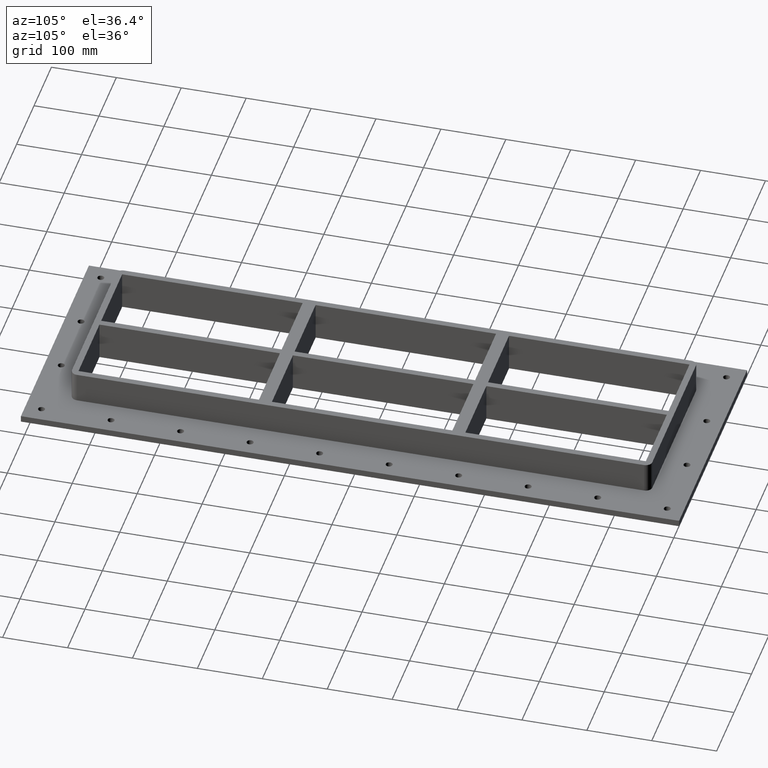
[diagram: clean part render]
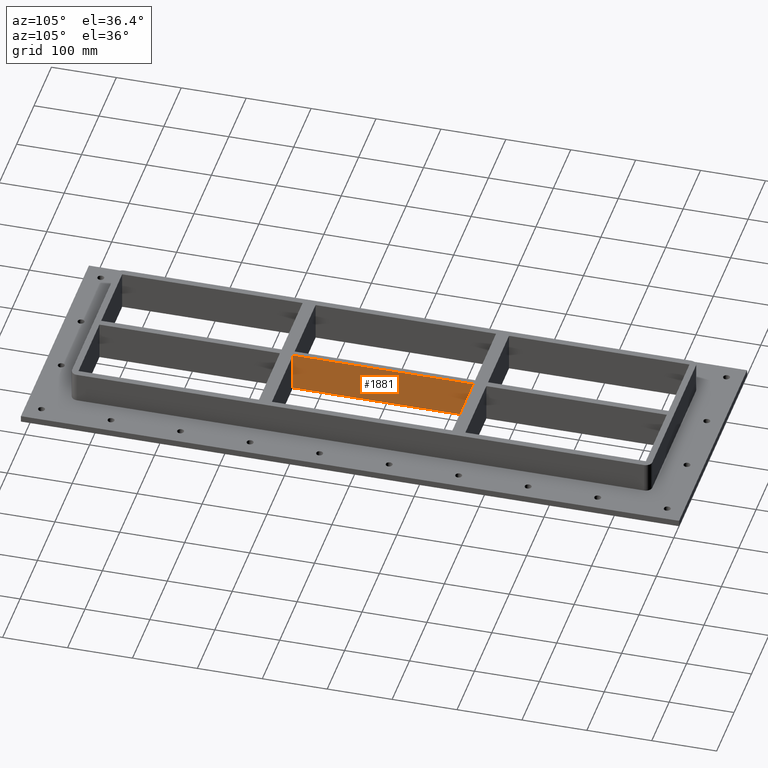
[diagram: same view with one face highlighted and labeled with its STEP entity id]
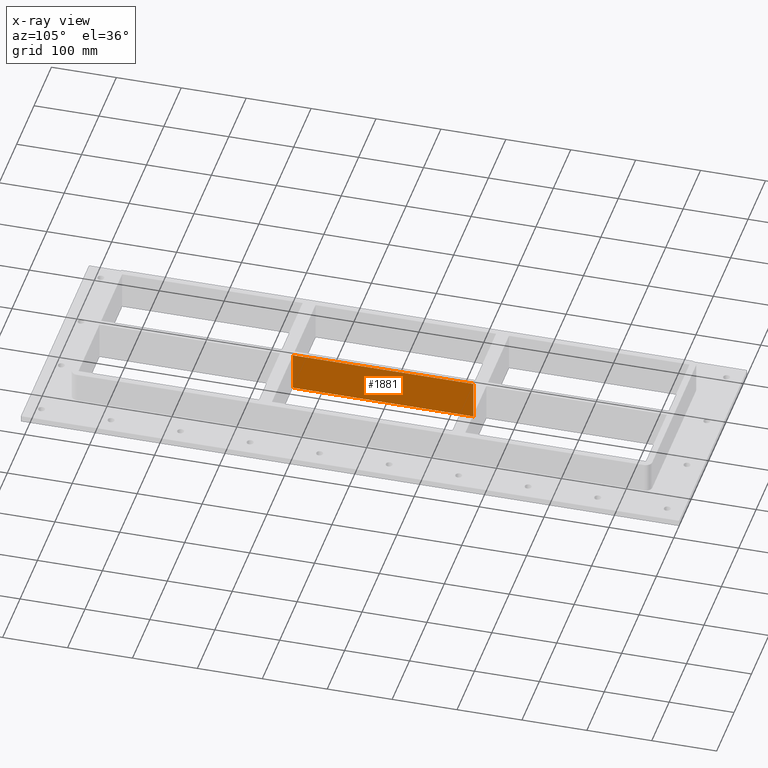
[diagram: x-ray of the same camera — body ghosted, the highlighted face saturated]
A machine part, auxiliary view. The second image highlights one B-rep face of the part: STEP entity #1881.
The next image is the same camera in x-ray: the body ghosted, the highlighted face saturated — about 0% of this face is hidden behind the body in this view.
In plain terms, the highlighted planar face has unit normal (-1, 0, 0).
Its self-contained STEP definition (entity closure, byte-faithful):
#1476=CARTESIAN_POINT('',(4.999999999999976,138.9999999999994,-30.0));
#1477=VERTEX_POINT('',#1476);
#1478=CARTESIAN_POINT('',(5.000000000000066,-139.00000000000045,-30.0));
#1479=VERTEX_POINT('',#1478);
#1480=CARTESIAN_POINT('',(4.999999999999977,138.99999999999937,-30.0));
#1481=DIRECTION('',(0.0,-1.0,0.0));
#1482=VECTOR('',#1481,277.99999999999983);
#1483=LINE('',#1480,#1482);
#1484=EDGE_CURVE('',#1477,#1479,#1483,.T.);
#1851=CARTESIAN_POINT('',(5.000000000000066,-139.00000000000045,30.0));
#1852=DIRECTION('',(-1.0,0.0,0.0));
#1853=DIRECTION('',(0.0,1.0,0.0));
#1854=AXIS2_PLACEMENT_3D('',#1851,#1852,#1853);
#1855=PLANE('',#1854);
#1856=ORIENTED_EDGE('',*,*,#1484,.F.);
#1857=CARTESIAN_POINT('',(4.999999999999976,138.9999999999994,30.0));
#1858=VERTEX_POINT('',#1857);
#1859=CARTESIAN_POINT('',(4.999999999999976,138.9999999999994,30.0));
#1860=DIRECTION('',(0.0,0.0,-1.0));
#1861=VECTOR('',#1860,60.0);
#1862=LINE('',#1859,#1861);
#1863=EDGE_CURVE('',#1858,#1477,#1862,.T.);
#1864=ORIENTED_EDGE('',*,*,#1863,.F.);
#1865=CARTESIAN_POINT('',(5.000000000000066,-139.00000000000045,30.0));
#1866=VERTEX_POINT('',#1865);
#1867=CARTESIAN_POINT('',(5.000000000000066,-139.00000000000045,30.0));
#1868=DIRECTION('',(0.0,1.0,0.0));
#1869=VECTOR('',#1868,277.99999999999983);
#1870=LINE('',#1867,#1869);
#1871=EDGE_CURVE('',#1866,#1858,#1870,.T.);
#1872=ORIENTED_EDGE('',*,*,#1871,.F.);
#1873=CARTESIAN_POINT('',(5.000000000000066,-139.00000000000045,30.0));
#1874=DIRECTION('',(0.0,0.0,-1.0));
#1875=VECTOR('',#1874,60.0);
#1876=LINE('',#1873,#1875);
#1877=EDGE_CURVE('',#1866,#1479,#1876,.T.);
#1878=ORIENTED_EDGE('',*,*,#1877,.T.);
#1879=EDGE_LOOP('',(#1856,#1864,#1872,#1878));
#1880=FACE_OUTER_BOUND('',#1879,.T.);
#1881=ADVANCED_FACE('',(#1880),#1855,.F.);